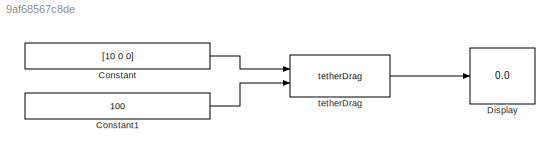
MODEL slx_9af68567c8de
KIND model
CONFIG AbsTol = auto
CONFIG EnableMultiTasking = off
CONFIG FixedStep = auto
CONFIG MaxStep = auto
CONFIG MinStep = auto
CONFIG RelTol = 1e-3
CONFIG SampleTimeConstraint = Unconstrained
CONFIG Solver = VariableStepAuto
CONFIG SolverName = VariableStepAuto
CONFIG StartTime = 0.0
CONFIG StopTime = 0
BLOCK [Constant] Constant
  Value = [10 0 0]
BLOCK [Constant] Constant1
  Value = 100
BLOCK [Display] Display
  Decimation = 1
  Ports = [1]
BLOCK [Reference] tetherDrag  REF=calcThrDrag_ul/tetherDrag
  Ports = [2, 1]
  SourceBlock = calcThrDrag_ul/tetherDrag
LINE Constant1:1 -> tetherDrag:2
LINE Constant:1 -> tetherDrag:1
LINE tetherDrag:1 -> Display:1
